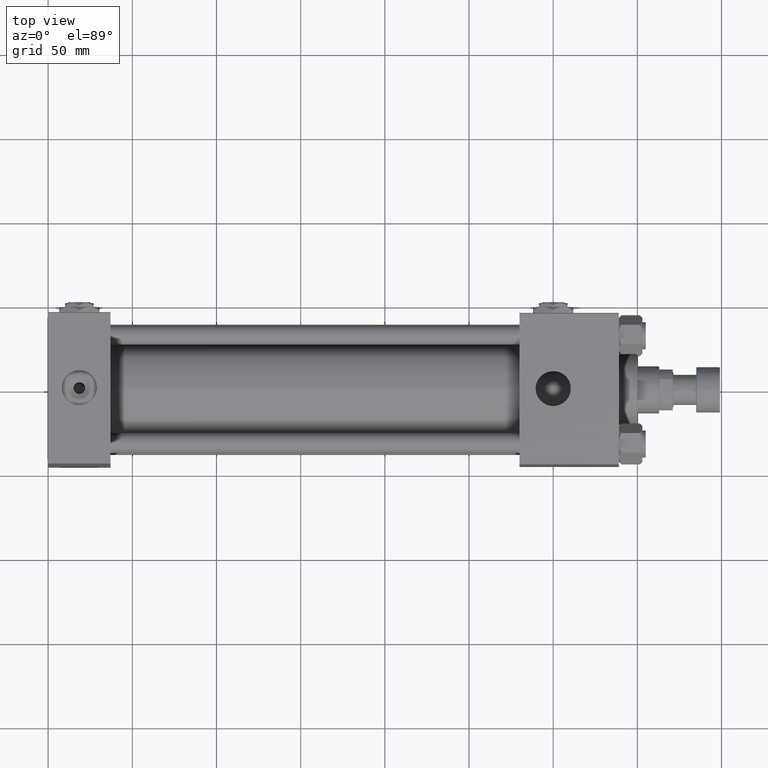
[diagram: clean part render]
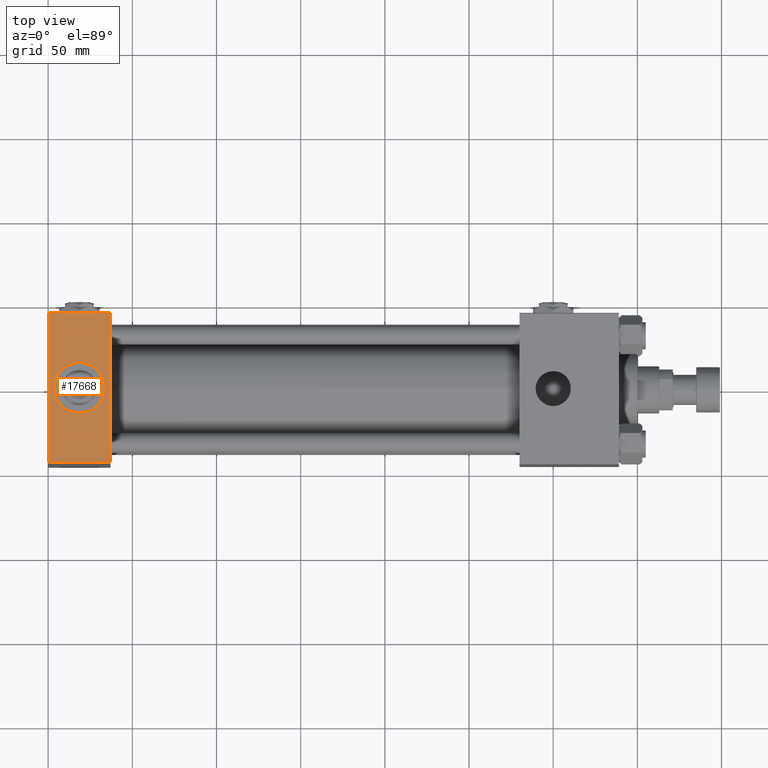
[diagram: same view with one face highlighted and labeled with its STEP entity id]
A machine part, top view. The second image highlights one B-rep face of the part: STEP entity #17668.
In plain terms, the highlighted planar face has unit normal (0, 0, -1).
Its self-contained STEP definition (entity closure, byte-faithful):
#325 = DIRECTION ( 'NONE',  ( 1.000000000000000000, 0.000000000000000000, 0.000000000000000000 ) ) ;
#451 = CARTESIAN_POINT ( 'NONE',  ( 33.50000000000000000, -1.268275607991932333E-14, 70.99999999999998579 ) ) ;
#1469 = DIRECTION ( 'NONE',  ( 0.000000000000000000, -1.000000000000000000, -1.541976423090495387E-16 ) ) ;
#2104 = AXIS2_PLACEMENT_3D ( 'NONE', #25811, #34857, #10131 ) ;
#2195 = CARTESIAN_POINT ( 'NONE',  ( 37.00000000000000000, 45.00000000000000711, 71.00000000000000000 ) ) ;
#3137 = EDGE_LOOP ( 'NONE', ( #47795, #4256 ) ) ;
#4256 = ORIENTED_EDGE ( 'NONE', *, *, #29405, .F. ) ;
#4757 = ORIENTED_EDGE ( 'NONE', *, *, #45042, .T. ) ;
#9164 = LINE ( 'NONE', #17153, #16888 ) ;
#9579 = VECTOR ( 'NONE', #325, 1000.000000000000000 ) ;
#9734 = DIRECTION ( 'NONE',  ( 1.000000000000000000, 0.000000000000000000, 0.000000000000000000 ) ) ;
#10131 = DIRECTION ( 'NONE',  ( 0.000000000000000000, 1.000000000000000000, 1.541976423090495633E-16 ) ) ;
#10211 = DIRECTION ( 'NONE',  ( 0.000000000000000000, 0.000000000000000000, 1.000000000000000000 ) ) ;
#10531 = VERTEX_POINT ( 'NONE', #17636 ) ;
#12732 = VERTEX_POINT ( 'NONE', #451 ) ;
#13618 = LINE ( 'NONE', #2195, #50443 ) ;
#14123 = EDGE_CURVE ( 'NONE', #10531, #50432, #45002, .T. ) ;
#14723 = CARTESIAN_POINT ( 'NONE',  ( 18.50000000000000000, -1.268275607991932333E-14, 70.99999999999998579 ) ) ;
#15755 = CIRCLE ( 'NONE', #49668, 15.00000000000000355 ) ;
#16836 = ORIENTED_EDGE ( 'NONE', *, *, #30839, .T. ) ;
#16846 = AXIS2_PLACEMENT_3D ( 'NONE', #14723, #10211, #26432 ) ;
#16888 = VECTOR ( 'NONE', #1469, 1000.000000000000000 ) ;
#16980 = ORIENTED_EDGE ( 'NONE', *, *, #14123, .T. ) ;
#17153 = CARTESIAN_POINT ( 'NONE',  ( 0.000000000000000000, 45.00000000000000711, 71.00000000000000000 ) ) ;
#17636 = CARTESIAN_POINT ( 'NONE',  ( 0.000000000000000000, -44.49999999999999289, 70.99999999999998579 ) ) ;
#17668 = ADVANCED_FACE ( 'NONE', ( #18105, #50531 ), #46826, .F. ) ;
#18105 = FACE_BOUND ( 'NONE', #3137, .T. ) ;
#18743 = VERTEX_POINT ( 'NONE', #52340 ) ;
#19889 = EDGE_CURVE ( 'NONE', #12732, #23515, #15755, .T. ) ;
#20085 = CARTESIAN_POINT ( 'NONE',  ( 0.000000000000000000, 44.50000000000000711, 71.00000000000000000 ) ) ;
#21147 = LINE ( 'NONE', #49569, #44653 ) ;
#23515 = VERTEX_POINT ( 'NONE', #44887 ) ;
#25811 = CARTESIAN_POINT ( 'NONE',  ( 37.00000000000000000, 45.00000000000000711, 71.00000000000000000 ) ) ;
#26432 = DIRECTION ( 'NONE',  ( 1.000000000000000000, 0.000000000000000000, 0.000000000000000000 ) ) ;
#29405 = EDGE_CURVE ( 'NONE', #23515, #12732, #40617, .T. ) ;
#30371 = DIRECTION ( 'NONE',  ( 0.000000000000000000, -1.000000000000000000, -1.541976423090495387E-16 ) ) ;
#30733 = CARTESIAN_POINT ( 'NONE',  ( 18.50000000000000000, -1.268275607991932333E-14, 70.99999999999998579 ) ) ;
#30839 = EDGE_CURVE ( 'NONE', #42290, #10531, #9164, .T. ) ;
#32588 = DIRECTION ( 'NONE',  ( -1.000000000000000000, 0.000000000000000000, 0.000000000000000000 ) ) ;
#34857 = DIRECTION ( 'NONE',  ( 0.000000000000000000, 1.541976423090495633E-16, -1.000000000000000000 ) ) ;
#37406 = EDGE_CURVE ( 'NONE', #18743, #50432, #13618, .T. ) ;
#38720 = DIRECTION ( 'NONE',  ( 0.000000000000000000, 0.000000000000000000, 1.000000000000000000 ) ) ;
#40276 = ORIENTED_EDGE ( 'NONE', *, *, #37406, .F. ) ;
#40617 = CIRCLE ( 'NONE', #16846, 15.00000000000000355 ) ;
#42290 = VERTEX_POINT ( 'NONE', #20085 ) ;
#44653 = VECTOR ( 'NONE', #32588, 1000.000000000000000 ) ;
#44887 = CARTESIAN_POINT ( 'NONE',  ( 3.499999999999997780, -1.084578588119829295E-14, 70.99999999999998579 ) ) ;
#45002 = LINE ( 'NONE', #50480, #9579 ) ;
#45042 = EDGE_CURVE ( 'NONE', #18743, #42290, #21147, .T. ) ;
#46826 = PLANE ( 'NONE',  #2104 ) ;
#47795 = ORIENTED_EDGE ( 'NONE', *, *, #19889, .F. ) ;
#49569 = CARTESIAN_POINT ( 'NONE',  ( 0.000000000000000000, 44.50000000000000711, 71.00000000000000000 ) ) ;
#49668 = AXIS2_PLACEMENT_3D ( 'NONE', #30733, #38720, #9734 ) ;
#50432 = VERTEX_POINT ( 'NONE', #51321 ) ;
#50443 = VECTOR ( 'NONE', #30371, 1000.000000000000000 ) ;
#50480 = CARTESIAN_POINT ( 'NONE',  ( 37.00000000000000000, -44.50000000000002132, 70.99999999999998579 ) ) ;
#50531 = FACE_OUTER_BOUND ( 'NONE', #50993, .T. ) ;
#50993 = EDGE_LOOP ( 'NONE', ( #16836, #16980, #40276, #4757 ) ) ;
#51321 = CARTESIAN_POINT ( 'NONE',  ( 37.00000000000000000, -44.49999999999999289, 70.99999999999998579 ) ) ;
#52340 = CARTESIAN_POINT ( 'NONE',  ( 37.00000000000000000, 44.50000000000000711, 71.00000000000000000 ) ) ;